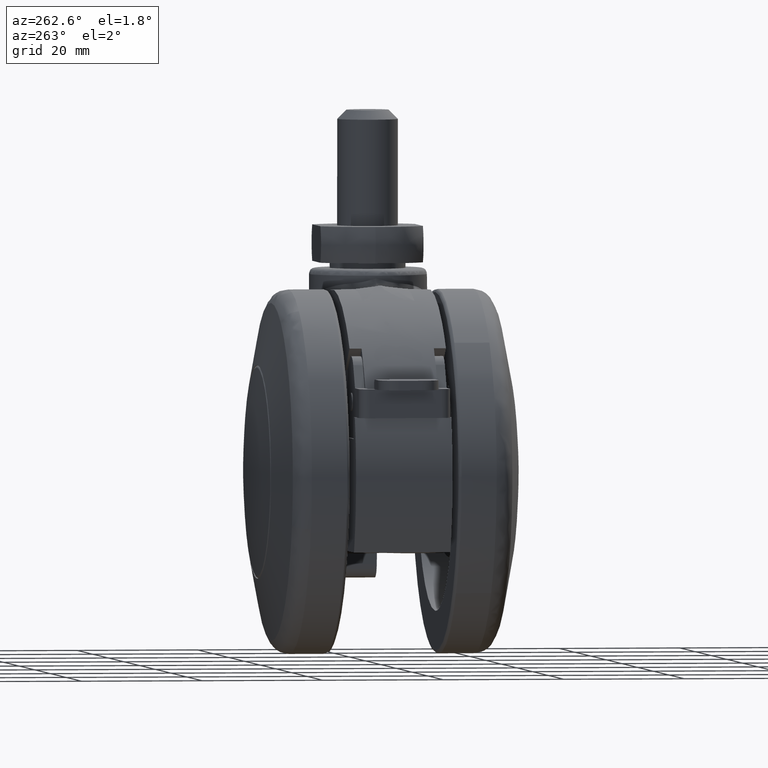
[diagram: clean part render]
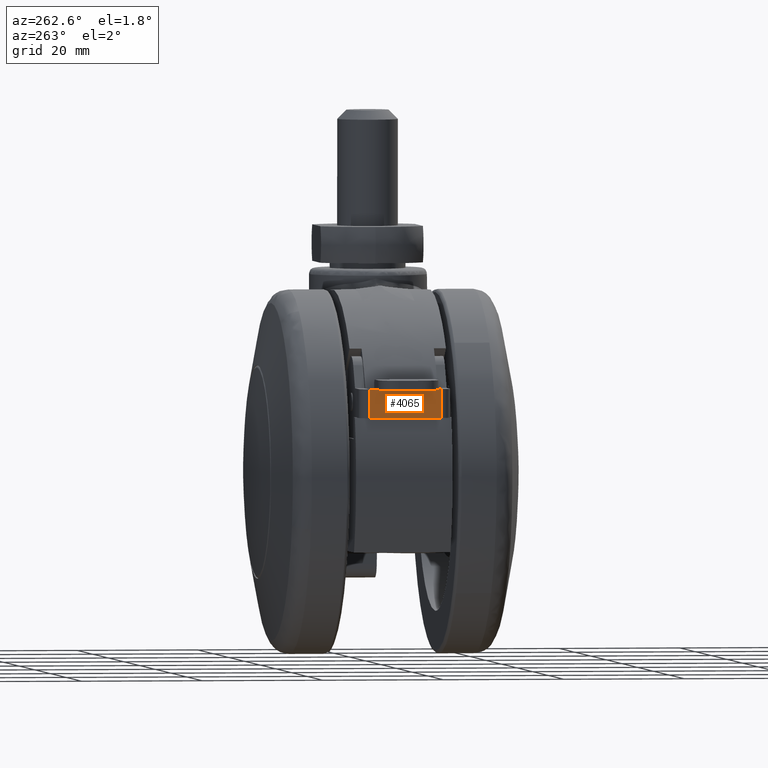
[diagram: same view with one face highlighted and labeled with its STEP entity id]
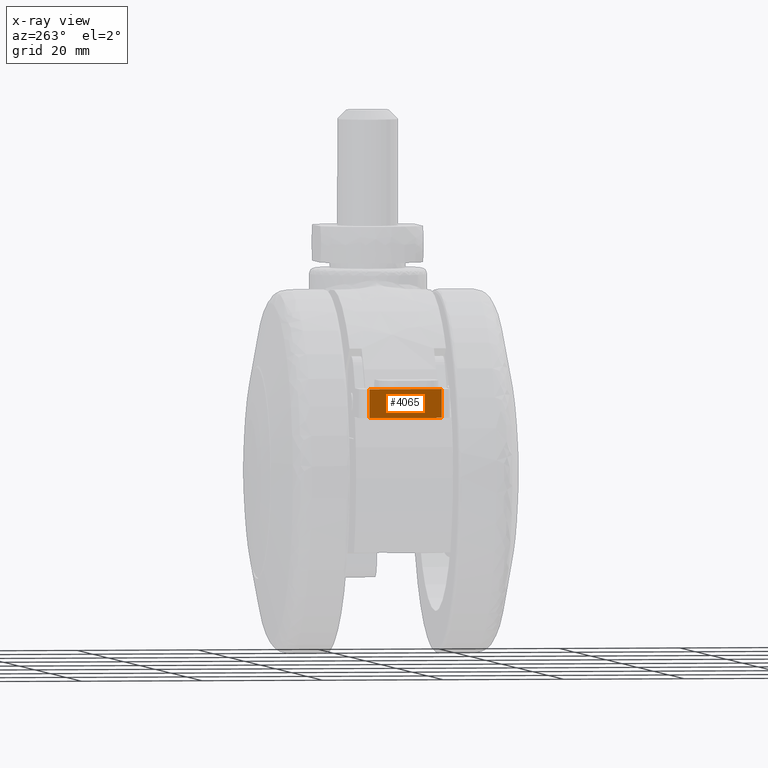
[diagram: x-ray of the same camera — body ghosted, the highlighted face saturated]
A machine part, auxiliary view. The second image highlights one B-rep face of the part: STEP entity #4065.
The next image is the same camera in x-ray: the body ghosted, the highlighted face saturated — about 0% of this face is hidden behind the body in this view.
In plain terms, the highlighted face is a freeform B-spline surface patch.
Its self-contained STEP definition (entity closure, byte-faithful):
#3698=CARTESIAN_POINT('',(-31.500000000000000,5.0,14.500000000000000));
#3699=VERTEX_POINT('',#3698);
#3756=CARTESIAN_POINT('',(-31.500000000000000,-5.0,14.500000000000000));
#3757=VERTEX_POINT('',#3756);
#3805=CARTESIAN_POINT('',(-31.500000000000000,-5.0,14.500000000000000));
#3806=CARTESIAN_POINT('',(-31.500000000000000,5.0,14.500000000000000));
#3807=QUASI_UNIFORM_CURVE('',1,(#3805,#3806),.UNSPECIFIED.,.F.,.U.);
#3808=EDGE_CURVE('',#3757,#3699,#3807,.T.);
#3890=CARTESIAN_POINT('',(-31.500000000000000,-6.0,9.750000000000199));
#3891=VERTEX_POINT('',#3890);
#3912=CARTESIAN_POINT('',(-31.500000000000000,-6.0,14.500000000000000));
#3913=VERTEX_POINT('',#3912);
#3927=CARTESIAN_POINT('',(-31.500000000000000,-6.0,9.750000000000199));
#3928=CARTESIAN_POINT('',(-31.500000000000000,-6.0,14.500000000000000));
#3929=QUASI_UNIFORM_CURVE('',1,(#3927,#3928),.UNSPECIFIED.,.F.,.U.);
#3930=EDGE_CURVE('',#3891,#3913,#3929,.T.);
#3949=CARTESIAN_POINT('',(-31.500000000000000,6.0,9.750000000000199));
#3950=VERTEX_POINT('',#3949);
#3966=CARTESIAN_POINT('',(-31.500000000000000,6.0,14.500000000000000));
#3967=VERTEX_POINT('',#3966);
#3968=CARTESIAN_POINT('',(-31.500000000000000,6.0,14.500000000000000));
#3969=CARTESIAN_POINT('',(-31.500000000000000,6.0,9.750000000000199));
#3970=QUASI_UNIFORM_CURVE('',1,(#3968,#3969),.UNSPECIFIED.,.F.,.U.);
#3971=EDGE_CURVE('',#3967,#3950,#3970,.T.);
#4040=CARTESIAN_POINT('',(-31.500000000000000,-6.599399976741671,9.512737509206630));
#4041=CARTESIAN_POINT('',(-31.500000000000000,-6.599399976741671,14.737262618198500));
#4042=CARTESIAN_POINT('',(-31.500000000000000,6.599400298606753,9.512737509206630));
#4043=CARTESIAN_POINT('',(-31.500000000000000,6.599400298606753,14.737262618198500));
#4044=B_SPLINE_SURFACE_WITH_KNOTS('',1,1,((#4040,#4042),(#4041,#4043)),.UNSPECIFIED.,.F.,.F.,.U.,(2,2),(2,2),(0.0,5.224525108991868),(0.0,13.198800275348420),.UNSPECIFIED.);
#4045=CARTESIAN_POINT('',(-31.500000000000000,-6.0,14.500000000000000));
#4046=CARTESIAN_POINT('',(-31.500000000000000,-5.0,14.500000000000000));
#4047=QUASI_UNIFORM_CURVE('',1,(#4045,#4046),.UNSPECIFIED.,.F.,.U.);
#4048=EDGE_CURVE('',#3913,#3757,#4047,.T.);
#4049=ORIENTED_EDGE('',*,*,#4048,.T.);
#4050=ORIENTED_EDGE('',*,*,#3808,.T.);
#4051=CARTESIAN_POINT('',(-31.500000000000000,5.0,14.500000000000000));
#4052=CARTESIAN_POINT('',(-31.500000000000000,6.0,14.500000000000000));
#4053=QUASI_UNIFORM_CURVE('',1,(#4051,#4052),.UNSPECIFIED.,.F.,.U.);
#4054=EDGE_CURVE('',#3699,#3967,#4053,.T.);
#4055=ORIENTED_EDGE('',*,*,#4054,.T.);
#4056=ORIENTED_EDGE('',*,*,#3971,.T.);
#4057=CARTESIAN_POINT('',(-31.500000000000000,-6.0,9.750000000000199));
#4058=CARTESIAN_POINT('',(-31.500000000000000,6.0,9.750000000000199));
#4059=QUASI_UNIFORM_CURVE('',1,(#4057,#4058),.UNSPECIFIED.,.F.,.U.);
#4060=EDGE_CURVE('',#3891,#3950,#4059,.T.);
#4061=ORIENTED_EDGE('',*,*,#4060,.F.);
#4062=ORIENTED_EDGE('',*,*,#3930,.T.);
#4063=EDGE_LOOP('',(#4049,#4050,#4055,#4056,#4061,#4062));
#4064=FACE_OUTER_BOUND('',#4063,.T.);
#4065=ADVANCED_FACE('',(#4064),#4044,.T.);